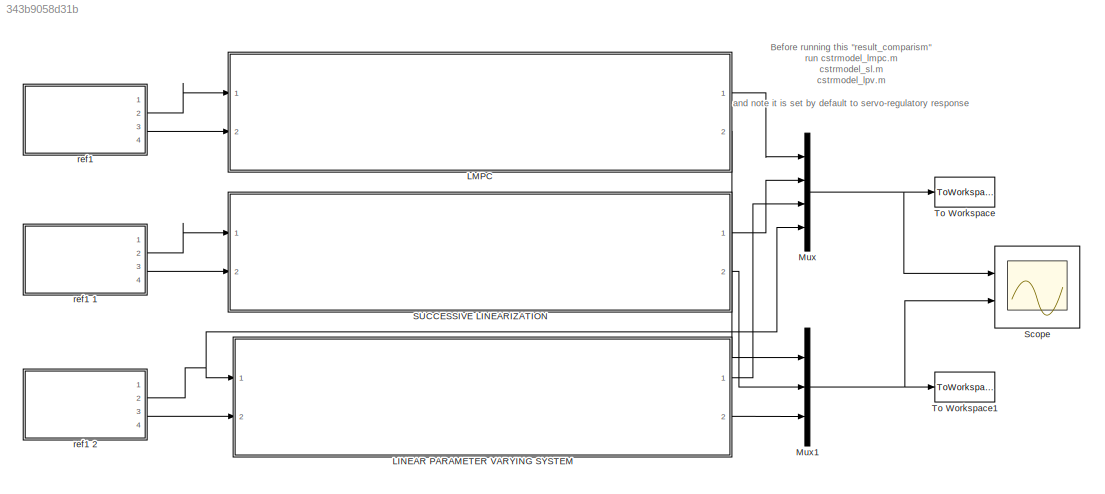
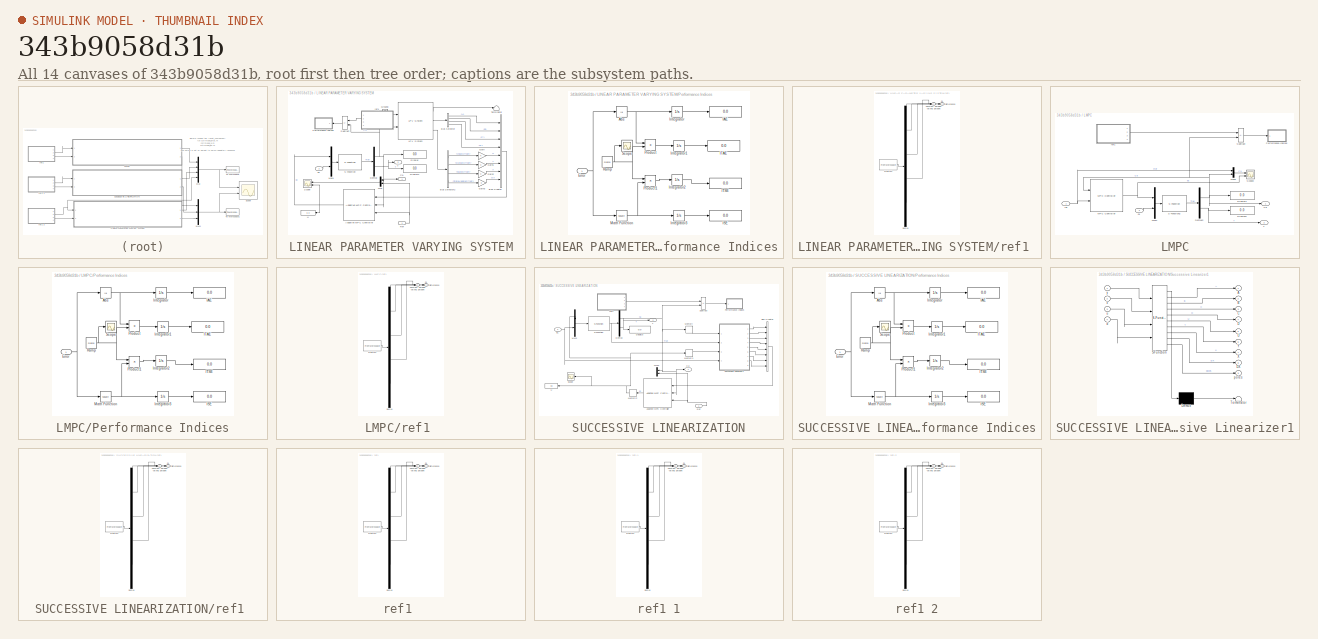
[diagram: thumbnail index - all 14 canvases of the model, root first then tree order]
MODEL slx_343b9058d31b
KIND model
CONFIG AbsTol = auto
CONFIG EnableMultiTasking = off
CONFIG FixedStep = auto
CONFIG MaxStep = auto
CONFIG MinStep = auto
CONFIG RelTol = 1e-3
CONFIG SampleTimeConstraint = Unconstrained
CONFIG SolverName = VariableStepAuto
CONFIG StartTime = 0.0
CONFIG StopTime = 400
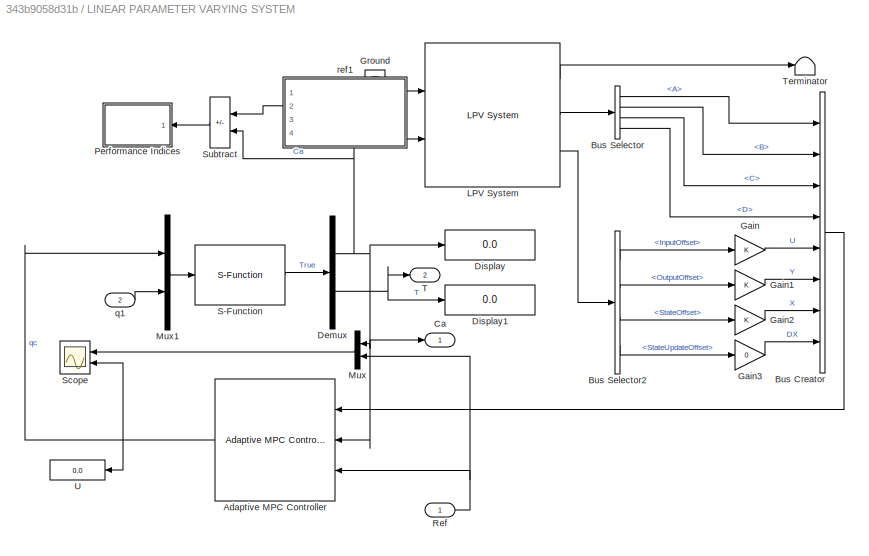
BLOCK [SubSystem] LINEAR PARAMETER VARYING SYSTEM
  Ports = [2, 2]
  RequestExecContextInheritance = off
BLOCK [Reference] LINEAR PARAMETER VARYING SYSTEM/Adaptive MPC Controller  REF=mpclib/Adaptive MPC Controller  (lib defined in mdl_ae329e0e0455)
  Ports = [3, 1]
  SCDEnableBlockLinearizationSpecification = on
  SourceBlock = mpclib/Adaptive MPC Controller
  SourceProductBaseCode = MP
  SourceType = Adaptive MPC
BLOCK [BusCreator] LINEAR PARAMETER VARYING SYSTEM/Bus Creator
  DisplayOption = bar
  InheritFromInputs = on
  Inputs = 8
  Ports = [8, 1]
BLOCK [BusSelector] LINEAR PARAMETER VARYING SYSTEM/Bus Selector
  OutputSignals = A,B,C,D
  Ports = [1, 4]
BLOCK [BusSelector] LINEAR PARAMETER VARYING SYSTEM/Bus Selector2
  OutputSignals = InputOffset,OutputOffset,StateOffset,StateUpdateOffset
  Ports = [1, 4]
BLOCK [Outport] LINEAR PARAMETER VARYING SYSTEM/Ca
  VectorParamsAs1DForOutWhenUnconnected = off
BLOCK [Demux] LINEAR PARAMETER VARYING SYSTEM/Demux
  Outputs = 2
  Ports = [1, 2]
BLOCK [Display] LINEAR PARAMETER VARYING SYSTEM/Display
  Decimation = 1
  Ports = [1]
BLOCK [Display] LINEAR PARAMETER VARYING SYSTEM/Display1
  Decimation = 1
  Ports = [1]
BLOCK [Gain] LINEAR PARAMETER VARYING SYSTEM/Gain
BLOCK [Gain] LINEAR PARAMETER VARYING SYSTEM/Gain1
BLOCK [Gain] LINEAR PARAMETER VARYING SYSTEM/Gain2
BLOCK [Gain] LINEAR PARAMETER VARYING SYSTEM/Gain3
  Gain = 0
BLOCK [Ground] LINEAR PARAMETER VARYING SYSTEM/Ground
BLOCK [Reference] LINEAR PARAMETER VARYING SYSTEM/LPV System  REF=cstblocks/Linear Parameter Varying/LPV System
  Ports = [2, 3]
  SourceBlock = cstblocks/Linear Parameter Varying/LPV System
  SourceProductBaseCode = CT
  SourceType = LPV Block
BLOCK [Mux] LINEAR PARAMETER VARYING SYSTEM/Mux
  DisplayOption = bar
  Inputs = 2
  NameLocation = top
  Ports = [2, 1]
BLOCK [Mux] LINEAR PARAMETER VARYING SYSTEM/Mux1
  DisplayOption = bar
  Inputs = 2
  Ports = [2, 1]
BLOCK [SubSystem] LINEAR PARAMETER VARYING SYSTEM/Performance Indices
  Ports = [1]
  RequestExecContextInheritance = off
BLOCK [Abs] LINEAR PARAMETER VARYING SYSTEM/Performance Indices/Abs
  SaturateOnIntegerOverflow = off
BLOCK [Inport] LINEAR PARAMETER VARYING SYSTEM/Performance Indices/Error
BLOCK [Display] LINEAR PARAMETER VARYING SYSTEM/Performance Indices/IAE
  Decimation = 1
  Ports = [1]
BLOCK [Display] LINEAR PARAMETER VARYING SYSTEM/Performance Indices/ISE
  Decimation = 1
  Ports = [1]
BLOCK [Display] LINEAR PARAMETER VARYING SYSTEM/Performance Indices/ITAE
  Decimation = 1
  Ports = [1]
BLOCK [Display] LINEAR PARAMETER VARYING SYSTEM/Performance Indices/ITSE
  Decimation = 1
  Ports = [1]
BLOCK [Integrator] LINEAR PARAMETER VARYING SYSTEM/Performance Indices/Integrator
  Ports = [1, 1]
BLOCK [Integrator] LINEAR PARAMETER VARYING SYSTEM/Performance Indices/Integrator1
  Ports = [1, 1]
BLOCK [Integrator] LINEAR PARAMETER VARYING SYSTEM/Performance Indices/Integrator2
  Ports = [1, 1]
BLOCK [Integrator] LINEAR PARAMETER VARYING SYSTEM/Performance Indices/Integrator3
  Ports = [1, 1]
BLOCK [Math] LINEAR PARAMETER VARYING SYSTEM/Performance Indices/Math Function
  Operator = square
  Ports = [1, 1]
  SignedPower = on
BLOCK [Product] LINEAR PARAMETER VARYING SYSTEM/Performance Indices/Product
  Ports = [2, 1]
  RndMeth = Zero
BLOCK [Product] LINEAR PARAMETER VARYING SYSTEM/Performance Indices/Product1
  Ports = [2, 1]
  RndMeth = Zero
BLOCK [Reference] LINEAR PARAMETER VARYING SYSTEM/Performance Indices/Ramp  REF=simulink/Sources/Ramp
  Ports = [0, 1]
  SourceBlock = simulink/Sources/Ramp
  SourceProductBaseCode = SL
  SourceType = Ramp
BLOCK [Scope] LINEAR PARAMETER VARYING SYSTEM/Performance Indices/Scope
  Floating = off
  NumInputPorts = 1
  Ports = [1]
  ScopeSpecificationString = Simulink.scopes.TimeScopeBlockCfg('CurrentConfiguration', extmgr.ConfigurationSet(extmgr.Configuration('Core','General UI',true),extmgr.Configuration('Core','Source UI',true),extmgr.Configuration('Sources','WiredSimulink',true,'DataLoggingLimitDataPoints',true,'DataLoggingSaveFormat','Array','DataLoggingDecimation','1','DataLoggingDecimateData',true),extmgr.Configuration('Visuals','Time Domain',tr...<+878ch>  <repeated x3 — deduplicated; at blocks: Scope>
BLOCK [Inport] LINEAR PARAMETER VARYING SYSTEM/Ref
BLOCK [S-Function] LINEAR PARAMETER VARYING SYSTEM/S-Function
  EnableBusSupport = off
  FunctionName = pr_sfun
  Ports = [1, 1]
  SFcnIsStateOwnerBlock = off
  SFunctionDeploymentMode = off
BLOCK [Scope] LINEAR PARAMETER VARYING SYSTEM/Scope
  Floating = off
  NumInputPorts = 2
  Ports = [2]
  ScopeSpecificationString = Simulink.scopes.TimeScopeBlockCfg('CurrentConfiguration', extmgr.ConfigurationSet(extmgr.Configuration('Core','General UI',true),extmgr.Configuration('Core','Source UI',true),extmgr.Configuration('Sources','WiredSimulink',true,'DataLogging',true,'DataLoggingVariableName','ScopeData1'),extmgr.Configuration('Visuals','Time Domain',true,'SerializedDisplays',{struct('MinYLimReal','0.02795','MaxYLimRea...<+2061ch>
BLOCK [Sum] LINEAR PARAMETER VARYING SYSTEM/Subtract
  IconShape = rectangular
  Inputs = +-
  Ports = [2, 1]
BLOCK [Outport] LINEAR PARAMETER VARYING SYSTEM/T
  Port = 2
BLOCK [Terminator] LINEAR PARAMETER VARYING SYSTEM/Terminator
BLOCK [Display] LINEAR PARAMETER VARYING SYSTEM/U
  Decimation = 1
  Ports = [1]
BLOCK [Inport] LINEAR PARAMETER VARYING SYSTEM/q1
  Port = 2
BLOCK [SubSystem] LINEAR PARAMETER VARYING SYSTEM/ref1 
  ClipboardFcn = sigbuilder_block('clipboard');
  CloseFcn = sigbuilder_block('close');
  ContinueFcn = sigbuilder_block('continue');
  CopyFcn = sigbuilder_block('copy');
  DeleteFcn = sigbuilder_block('delete');
  LoadFcn = sigbuilder_block('load');
  MaskHideContents = on
  ModelCloseFcn = sigbuilder_block('modelClose');
  NameChangeFcn = sigbuilder_block('namechange');
  OpenFcn = sigbuilder_block('open',[5.5 0 949 448 ]);
  PauseFcn = sigbuilder_block('pause');
  Ports = [0, 4]
  PreSaveFcn = sigbuilder_block('preSave');
  RequestExecContextInheritance = off
  StartFcn = sigbuilder_block('start');
  StopFcn = sigbuilder_block('stop');
  Tag = STV Subsys
BLOCK [Outport] LINEAR PARAMETER VARYING SYSTEM/ref1 /Constant Setpoint
  Tag = STV Outport
BLOCK [Demux] LINEAR PARAMETER VARYING SYSTEM/ref1 /Demux
  DisplayOption = none
  Ports = [1, 4]
  Tag = STV Demux
BLOCK [Outport] LINEAR PARAMETER VARYING SYSTEM/ref1 /Disturbance
  Port = 4
  Tag = STV Outport
BLOCK [FromWorkspace] LINEAR PARAMETER VARYING SYSTEM/ref1 /FromWs
  Tag = STV FromWs
  VariableName = tuvar
BLOCK [Outport] LINEAR PARAMETER VARYING SYSTEM/ref1 /Varying Setpoint
  Port = 2
  Tag = STV Outport
  VectorParamsAs1DForOutWhenUnconnected = off
BLOCK [Outport] LINEAR PARAMETER VARYING SYSTEM/ref1 /q1
  Port = 3
  Tag = STV Outport
BLOCK [SubSystem] LMPC
  Ports = [2, 2]
  RequestExecContextInheritance = off
BLOCK [Outport] LMPC/Ca
  VectorParamsAs1DForOutWhenUnconnected = off
BLOCK [Demux] LMPC/Demux2
  Outputs = 2
  Ports = [1, 2]
BLOCK [Display] LMPC/Display4
  Decimation = 1
  Ports = [1]
BLOCK [Display] LMPC/Display5
  Decimation = 1
  Ports = [1]
BLOCK [Reference] LMPC/MPC Controller  REF=mpclib/MPC Controller  (lib defined in mdl_ae329e0e0455)
  Ports = [2, 1]
  SCDEnableBlockLinearizationSpecification = on
  SourceBlock = mpclib/MPC Controller
  SourceProductBaseCode = MP
  SourceType = MPC
BLOCK [Mux] LMPC/Mux4
  DisplayOption = bar
  Inputs = 2
  Ports = [2, 1]
BLOCK [Mux] LMPC/Mux5
  DisplayOption = bar
  Inputs = 2
  Ports = [2, 1]
BLOCK [SubSystem] LMPC/Performance Indices
  Ports = [1]
  RequestExecContextInheritance = off
BLOCK [Abs] LMPC/Performance Indices/Abs
  SaturateOnIntegerOverflow = off
BLOCK [Inport] LMPC/Performance Indices/Error
BLOCK [Display] LMPC/Performance Indices/IAE
  Decimation = 1
  Ports = [1]
BLOCK [Display] LMPC/Performance Indices/ISE
  Decimation = 1
  Ports = [1]
BLOCK [Display] LMPC/Performance Indices/ITAE
  Decimation = 1
  Ports = [1]
BLOCK [Display] LMPC/Performance Indices/ITSE
  Decimation = 1
  Ports = [1]
BLOCK [Integrator] LMPC/Performance Indices/Integrator
  Ports = [1, 1]
BLOCK [Integrator] LMPC/Performance Indices/Integrator1
  Ports = [1, 1]
BLOCK [Integrator] LMPC/Performance Indices/Integrator2
  Ports = [1, 1]
BLOCK [Integrator] LMPC/Performance Indices/Integrator3
  Ports = [1, 1]
BLOCK [Math] LMPC/Performance Indices/Math Function
  Operator = square
  Ports = [1, 1]
  SignedPower = on
BLOCK [Product] LMPC/Performance Indices/Product
  Ports = [2, 1]
  RndMeth = Zero
BLOCK [Product] LMPC/Performance Indices/Product1
  Ports = [2, 1]
  RndMeth = Zero
BLOCK [Reference] LMPC/Performance Indices/Ramp  REF=simulink/Sources/Ramp
  Ports = [0, 1]
  SourceBlock = simulink/Sources/Ramp
  SourceProductBaseCode = SL
  SourceType = Ramp
BLOCK [Scope] LMPC/Performance Indices/Scope
  Floating = off
  NumInputPorts = 1
  Ports = [1]
BLOCK [S-Function] LMPC/S-Function2
  EnableBusSupport = off
  FunctionName = pr_sfun
  Ports = [1, 1]
  SFcnIsStateOwnerBlock = off
  SFunctionDeploymentMode = off
BLOCK [Scope] LMPC/Scope2
  Floating = off
  NumInputPorts = 2
  Ports = [2]
  ScopeSpecificationString = Simulink.scopes.TimeScopeBlockCfg('CurrentConfiguration', extmgr.ConfigurationSet(extmgr.Configuration('Core','General UI',true),extmgr.Configuration('Core','Source UI',true),extmgr.Configuration('Sources','WiredSimulink',true,'DataLoggingVariableName','ScopeData3'),extmgr.Configuration('Visuals','Time Domain',true,'SerializedDisplays',{struct('MinYLimReal','0.02812','MaxYLimReal','0.14688','YLabe...<+1966ch>
BLOCK [Sum] LMPC/Subtract
  IconShape = rectangular
  Inputs = +-
  Ports = [2, 1]
BLOCK [Outport] LMPC/T
  Port = 2
BLOCK [Inport] LMPC/q1
  Port = 2
BLOCK [Inport] LMPC/ref
BLOCK [SubSystem] LMPC/ref1 
  ClipboardFcn = sigbuilder_block('clipboard');
  CloseFcn = sigbuilder_block('close');
  ContinueFcn = sigbuilder_block('continue');
  CopyFcn = sigbuilder_block('copy');
  DeleteFcn = sigbuilder_block('delete');
  LoadFcn = sigbuilder_block('load');
  MaskHideContents = on
  ModelCloseFcn = sigbuilder_block('modelClose');
  NameChangeFcn = sigbuilder_block('namechange');
  OpenFcn = sigbuilder_block('open',[5.5 0 949 448 ]);
  PauseFcn = sigbuilder_block('pause');
  Ports = [0, 4]
  PreSaveFcn = sigbuilder_block('preSave');
  RequestExecContextInheritance = off
  StartFcn = sigbuilder_block('start');
  StopFcn = sigbuilder_block('stop');
  Tag = STV Subsys
BLOCK [Outport] LMPC/ref1 /Constant Setpoint
  Tag = STV Outport
BLOCK [Demux] LMPC/ref1 /Demux
  DisplayOption = none
  Ports = [1, 4]
  Tag = STV Demux
BLOCK [Outport] LMPC/ref1 /Disturbance
  Port = 4
  Tag = STV Outport
BLOCK [FromWorkspace] LMPC/ref1 /FromWs
  Tag = STV FromWs
  VariableName = tuvar
BLOCK [Outport] LMPC/ref1 /Varying Setpoint
  Port = 2
  Tag = STV Outport
  VectorParamsAs1DForOutWhenUnconnected = off
BLOCK [Outport] LMPC/ref1 /q1
  Port = 3
  Tag = STV Outport
BLOCK [Mux] Mux
  DisplayOption = bar
  Ports = [4, 1]
BLOCK [Mux] Mux1
  DisplayOption = bar
  Inputs = 3
  Ports = [3, 1]
BLOCK [SubSystem] SUCCESSIVE LINEARIZATION
  Ports = [2, 2]
  RequestExecContextInheritance = off
BLOCK [Reference] SUCCESSIVE LINEARIZATION/Adaptive MPC Controller  REF=mpclib/Adaptive MPC Controller  (lib defined in mdl_ae329e0e0455)
  Ports = [3, 1]
  SCDEnableBlockLinearizationSpecification = on
  SourceBlock = mpclib/Adaptive MPC Controller
  SourceProductBaseCode = MP
  SourceType = Adaptive MPC
BLOCK [BusCreator] SUCCESSIVE LINEARIZATION/Bus Creator
  DisplayOption = bar
  InheritFromInputs = on
  Inputs = 8
  Ports = [8, 1]
BLOCK [Outport] SUCCESSIVE LINEARIZATION/Ca
  VectorParamsAs1DForOutWhenUnconnected = off
BLOCK [Demux] SUCCESSIVE LINEARIZATION/Demux
  Outputs = 2
  Ports = [1, 2]
BLOCK [Display] SUCCESSIVE LINEARIZATION/Display3
  Decimation = 1
  Ports = [1]
BLOCK [Memory] SUCCESSIVE LINEARIZATION/Memory
  InitialCondition = 0.1
BLOCK [Memory] SUCCESSIVE LINEARIZATION/Memory1
  InitialCondition = 103.41
BLOCK [Memory] SUCCESSIVE LINEARIZATION/Memory2
  InitialCondition = 103.41
BLOCK [Mux] SUCCESSIVE LINEARIZATION/Mux2
  DisplayOption = bar
  Inputs = 2
  NameLocation = top
  Ports = [2, 1]
BLOCK [Mux] SUCCESSIVE LINEARIZATION/Mux3
  DisplayOption = bar
  Inputs = 2
  Ports = [2, 1]
BLOCK [SubSystem] SUCCESSIVE LINEARIZATION/Performance Indices
  Ports = [1]
  RequestExecContextInheritance = off
BLOCK [Abs] SUCCESSIVE LINEARIZATION/Performance Indices/Abs
  SaturateOnIntegerOverflow = off
BLOCK [Inport] SUCCESSIVE LINEARIZATION/Performance Indices/Error
BLOCK [Display] SUCCESSIVE LINEARIZATION/Performance Indices/IAE
  Decimation = 1
  Ports = [1]
BLOCK [Display] SUCCESSIVE LINEARIZATION/Performance Indices/ISE
  Decimation = 1
  Ports = [1]
BLOCK [Display] SUCCESSIVE LINEARIZATION/Performance Indices/ITAE
  Decimation = 1
  Ports = [1]
BLOCK [Display] SUCCESSIVE LINEARIZATION/Performance Indices/ITSE
  Decimation = 1
  Ports = [1]
BLOCK [Integrator] SUCCESSIVE LINEARIZATION/Performance Indices/Integrator
  Ports = [1, 1]
BLOCK [Integrator] SUCCESSIVE LINEARIZATION/Performance Indices/Integrator1
  Ports = [1, 1]
BLOCK [Integrator] SUCCESSIVE LINEARIZATION/Performance Indices/Integrator2
  Ports = [1, 1]
BLOCK [Integrator] SUCCESSIVE LINEARIZATION/Performance Indices/Integrator3
  Ports = [1, 1]
BLOCK [Math] SUCCESSIVE LINEARIZATION/Performance Indices/Math Function
  Operator = square
  Ports = [1, 1]
  SignedPower = on
BLOCK [Product] SUCCESSIVE LINEARIZATION/Performance Indices/Product
  Ports = [2, 1]
  RndMeth = Zero
BLOCK [Product] SUCCESSIVE LINEARIZATION/Performance Indices/Product1
  Ports = [2, 1]
  RndMeth = Zero
BLOCK [Reference] SUCCESSIVE LINEARIZATION/Performance Indices/Ramp  REF=simulink/Sources/Ramp
  Ports = [0, 1]
  SourceBlock = simulink/Sources/Ramp
  SourceProductBaseCode = SL
  SourceType = Ramp
BLOCK [Scope] SUCCESSIVE LINEARIZATION/Performance Indices/Scope
  Floating = off
  NumInputPorts = 1
  Ports = [1]
BLOCK [Inport] SUCCESSIVE LINEARIZATION/Ref
BLOCK [S-Function] SUCCESSIVE LINEARIZATION/S-Function
  EnableBusSupport = off
  FunctionName = pr_sfun
  Ports = [1, 1]
  SFcnIsStateOwnerBlock = off
  SFunctionDeploymentMode = off
BLOCK [Scope] SUCCESSIVE LINEARIZATION/Scope
  Floating = off
  NumInputPorts = 1
  Ports = [1]
  ScopeSpecificationString = Simulink.scopes.TimeScopeBlockCfg('CurrentConfiguration', extmgr.ConfigurationSet(extmgr.Configuration('Core','General UI',true),extmgr.Configuration('Core','Source UI',true),extmgr.Configuration('Sources','WiredSimulink',true,'DataLoggingVariableName','ScopeData1'),extmgr.Configuration('Visuals','Time Domain',true,'SerializedDisplays',{struct('MinYLimReal','76.49751','MaxYLimReal','106.40028','YL...<+1376ch>
BLOCK [Sum] SUCCESSIVE LINEARIZATION/Subtract
  IconShape = rectangular
  Inputs = +-
  Ports = [2, 1]
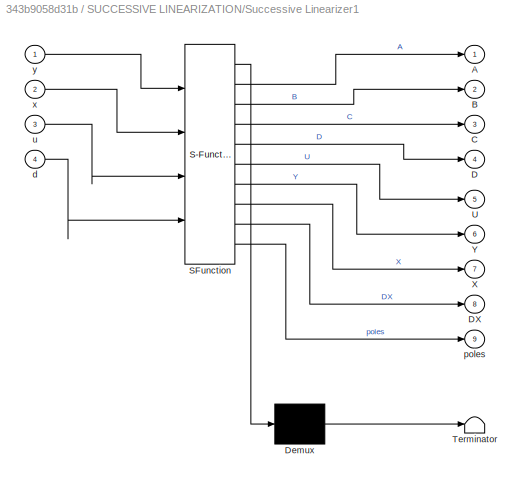
BLOCK [SubSystem] SUCCESSIVE LINEARIZATION/Successive Linearizer1
  ErrorFcn = Stateflow.Translate.translate
  PermitHierarchicalResolution = ExplicitOnly
  Ports = [4, 9]
  RequestExecContextInheritance = off
  SFBlockType = MATLAB Function
  SystemSampleTime = 0.5
  TreatAsAtomicUnit = on
BLOCK [Demux] SUCCESSIVE LINEARIZATION/Successive Linearizer1/ Demux 
  Outputs = 1
  Ports = [1, 1]
BLOCK [S-Function] SUCCESSIVE LINEARIZATION/Successive Linearizer1/ SFunction 
  EnableBusSupport = on
  FunctionName = sf_sfun
  PortCounts = [4 10]
  Ports = [4, 10]
  SFcnIsStateOwnerBlock = off
  SFunctionDeploymentMode = off
  Tag = Stateflow S-Function 1
BLOCK [Terminator] SUCCESSIVE LINEARIZATION/Successive Linearizer1/ Terminator 
BLOCK [Outport] SUCCESSIVE LINEARIZATION/Successive Linearizer1/A
  VectorParamsAs1DForOutWhenUnconnected = off
BLOCK [Outport] SUCCESSIVE LINEARIZATION/Successive Linearizer1/B
  Port = 2
  VectorParamsAs1DForOutWhenUnconnected = off
BLOCK [Outport] SUCCESSIVE LINEARIZATION/Successive Linearizer1/C
  Port = 3
  VectorParamsAs1DForOutWhenUnconnected = off
BLOCK [Outport] SUCCESSIVE LINEARIZATION/Successive Linearizer1/D
  Port = 4
  VectorParamsAs1DForOutWhenUnconnected = off
BLOCK [Outport] SUCCESSIVE LINEARIZATION/Successive Linearizer1/DX
  Port = 8
  VectorParamsAs1DForOutWhenUnconnected = off
BLOCK [Outport] SUCCESSIVE LINEARIZATION/Successive Linearizer1/U
  Port = 5
  VectorParamsAs1DForOutWhenUnconnected = off
BLOCK [Outport] SUCCESSIVE LINEARIZATION/Successive Linearizer1/X
  Port = 7
  VectorParamsAs1DForOutWhenUnconnected = off
BLOCK [Outport] SUCCESSIVE LINEARIZATION/Successive Linearizer1/Y
  Port = 6
  VectorParamsAs1DForOutWhenUnconnected = off
BLOCK [Inport] SUCCESSIVE LINEARIZATION/Successive Linearizer1/d
  Port = 4
BLOCK [Outport] SUCCESSIVE LINEARIZATION/Successive Linearizer1/poles
  Port = 9
BLOCK [Inport] SUCCESSIVE LINEARIZATION/Successive Linearizer1/u
  Port = 3
BLOCK [Inport] SUCCESSIVE LINEARIZATION/Successive Linearizer1/x
  Port = 2
BLOCK [Inport] SUCCESSIVE LINEARIZATION/Successive Linearizer1/y
BLOCK [Outport] SUCCESSIVE LINEARIZATION/T
  Port = 2
BLOCK [Display] SUCCESSIVE LINEARIZATION/U
  Decimation = 1
  Ports = [1]
BLOCK [Inport] SUCCESSIVE LINEARIZATION/q1
  Port = 2
BLOCK [SubSystem] SUCCESSIVE LINEARIZATION/ref1 
  ClipboardFcn = sigbuilder_block('clipboard');
  CloseFcn = sigbuilder_block('close');
  ContinueFcn = sigbuilder_block('continue');
  CopyFcn = sigbuilder_block('copy');
  DeleteFcn = sigbuilder_block('delete');
  LoadFcn = sigbuilder_block('load');
  MaskHideContents = on
  ModelCloseFcn = sigbuilder_block('modelClose');
  NameChangeFcn = sigbuilder_block('namechange');
  OpenFcn = sigbuilder_block('open',[5.5 0 949 448 ]);
  PauseFcn = sigbuilder_block('pause');
  Ports = [0, 4]
  PreSaveFcn = sigbuilder_block('preSave');
  RequestExecContextInheritance = off
  StartFcn = sigbuilder_block('start');
  StopFcn = sigbuilder_block('stop');
  Tag = STV Subsys
BLOCK [Outport] SUCCESSIVE LINEARIZATION/ref1 /Constant Setpoint
  Tag = STV Outport
BLOCK [Demux] SUCCESSIVE LINEARIZATION/ref1 /Demux
  DisplayOption = none
  Ports = [1, 4]
  Tag = STV Demux
BLOCK [Outport] SUCCESSIVE LINEARIZATION/ref1 /Disturbance
  Port = 4
  Tag = STV Outport
BLOCK [FromWorkspace] SUCCESSIVE LINEARIZATION/ref1 /FromWs
  Tag = STV FromWs
  VariableName = tuvar
BLOCK [Outport] SUCCESSIVE LINEARIZATION/ref1 /Varying Setpoint
  Port = 2
  Tag = STV Outport
  VectorParamsAs1DForOutWhenUnconnected = off
BLOCK [Outport] SUCCESSIVE LINEARIZATION/ref1 /q1
  Port = 3
  Tag = STV Outport
BLOCK [Scope] Scope
  Floating = off
  NumInputPorts = 2
  Ports = [2]
  ScopeSpecificationString = Simulink.scopes.TimeScopeBlockCfg('CurrentConfiguration', extmgr.ConfigurationSet(extmgr.Configuration('Core','General UI',true),extmgr.Configuration('Core','Source UI',true),extmgr.Configuration('Sources','WiredSimulink',true,'DataLoggingVariableName','ScopeData1'),extmgr.Configuration('Visuals','Time Domain',true,'SerializedDisplays',{struct('MinYLimReal','0.0296','MaxYLimReal','0.11725','YLabel...<+2422ch>
BLOCK [ToWorkspace] To Workspace
  FixptAsFi = on
  MaxDataPoints = inf
  Ports = [1]
  SampleTime = -1
  SaveFormat = Structure With Time
  VariableName = asave
BLOCK [ToWorkspace] To Workspace1
  FixptAsFi = on
  MaxDataPoints = inf
  Ports = [1]
  SampleTime = -1
  SaveFormat = Structure With Time
  VariableName = bsave
BLOCK [SubSystem] ref1 
  ClipboardFcn = sigbuilder_block('clipboard');
  CloseFcn = sigbuilder_block('close');
  ContinueFcn = sigbuilder_block('continue');
  CopyFcn = sigbuilder_block('copy');
  DeleteFcn = sigbuilder_block('delete');
  LoadFcn = sigbuilder_block('load');
  MaskHideContents = on
  ModelCloseFcn = sigbuilder_block('modelClose');
  NameChangeFcn = sigbuilder_block('namechange');
  OpenFcn = sigbuilder_block('open',[5.5 0 949 448 ]);
  PauseFcn = sigbuilder_block('pause');
  Ports = [0, 4]
  PreSaveFcn = sigbuilder_block('preSave');
  RequestExecContextInheritance = off
  StartFcn = sigbuilder_block('start');
  StopFcn = sigbuilder_block('stop');
  Tag = STV Subsys
BLOCK [Outport] ref1 /Constant Setpoint
  Tag = STV Outport
BLOCK [Demux] ref1 /Demux
  DisplayOption = none
  Ports = [1, 4]
  Tag = STV Demux
BLOCK [Outport] ref1 /Disturbance
  Port = 4
  Tag = STV Outport
BLOCK [FromWorkspace] ref1 /FromWs
  Tag = STV FromWs
  VariableName = tuvar
BLOCK [Outport] ref1 /Varying Setpoint
  Port = 2
  Tag = STV Outport
  VectorParamsAs1DForOutWhenUnconnected = off
BLOCK [Outport] ref1 /q1
  Port = 3
  Tag = STV Outport
BLOCK [SubSystem] ref1 1
  ClipboardFcn = sigbuilder_block('clipboard');
  CloseFcn = sigbuilder_block('close');
  ContinueFcn = sigbuilder_block('continue');
  CopyFcn = sigbuilder_block('copy');
  DeleteFcn = sigbuilder_block('delete');
  LoadFcn = sigbuilder_block('load');
  MaskHideContents = on
  ModelCloseFcn = sigbuilder_block('modelClose');
  NameChangeFcn = sigbuilder_block('namechange');
  OpenFcn = sigbuilder_block('open',[5.5 0 949 448 ]);
  PauseFcn = sigbuilder_block('pause');
  Ports = [0, 4]
  PreSaveFcn = sigbuilder_block('preSave');
  RequestExecContextInheritance = off
  StartFcn = sigbuilder_block('start');
  StopFcn = sigbuilder_block('stop');
  Tag = STV Subsys
BLOCK [Outport] ref1 1/Constant Setpoint
  Tag = STV Outport
BLOCK [Demux] ref1 1/Demux
  DisplayOption = none
  Ports = [1, 4]
  Tag = STV Demux
BLOCK [Outport] ref1 1/Disturbance
  Port = 4
  Tag = STV Outport
BLOCK [FromWorkspace] ref1 1/FromWs
  Tag = STV FromWs
  VariableName = tuvar
BLOCK [Outport] ref1 1/Varying Setpoint
  Port = 2
  Tag = STV Outport
  VectorParamsAs1DForOutWhenUnconnected = off
BLOCK [Outport] ref1 1/q1
  Port = 3
  Tag = STV Outport
BLOCK [SubSystem] ref1 2
  ClipboardFcn = sigbuilder_block('clipboard');
  CloseFcn = sigbuilder_block('close');
  ContinueFcn = sigbuilder_block('continue');
  CopyFcn = sigbuilder_block('copy');
  DeleteFcn = sigbuilder_block('delete');
  LoadFcn = sigbuilder_block('load');
  MaskHideContents = on
  ModelCloseFcn = sigbuilder_block('modelClose');
  NameChangeFcn = sigbuilder_block('namechange');
  OpenFcn = sigbuilder_block('open',[5.5 0 949 448 ]);
  PauseFcn = sigbuilder_block('pause');
  Ports = [0, 4]
  PreSaveFcn = sigbuilder_block('preSave');
  RequestExecContextInheritance = off
  StartFcn = sigbuilder_block('start');
  StopFcn = sigbuilder_block('stop');
  Tag = STV Subsys
BLOCK [Outport] ref1 2/Constant Setpoint
  Tag = STV Outport
BLOCK [Demux] ref1 2/Demux
  DisplayOption = none
  Ports = [1, 4]
  Tag = STV Demux
BLOCK [Outport] ref1 2/Disturbance
  Port = 4
  Tag = STV Outport
BLOCK [FromWorkspace] ref1 2/FromWs
  Tag = STV FromWs
  VariableName = tuvar
BLOCK [Outport] ref1 2/Varying Setpoint
  Port = 2
  Tag = STV Outport
  VectorParamsAs1DForOutWhenUnconnected = off
BLOCK [Outport] ref1 2/q1
  Port = 3
  Tag = STV Outport
ANNOTATION (root): Before running this "result_comparism" run cstrmodel_lmpc.m cstrmodel_sl.m cstrmodel_lpv.m and note it is set by default to servo-regulatory response
NET LINEAR PARAMETER VARYING SYSTEM/Adaptive MPC Controller:1 -> LINEAR PARAMETER VARYING SYSTEM/Mux1:1, LINEAR PARAMETER VARYING SYSTEM/Scope:2, LINEAR PARAMETER VARYING SYSTEM/U:1
LINE LINEAR PARAMETER VARYING SYSTEM/Bus Creator:1 -> LINEAR PARAMETER VARYING SYSTEM/Adaptive MPC Controller:1
LINE LINEAR PARAMETER VARYING SYSTEM/Bus Selector2:1 -> LINEAR PARAMETER VARYING SYSTEM/Gain:1
LINE LINEAR PARAMETER VARYING SYSTEM/Bus Selector2:2 -> LINEAR PARAMETER VARYING SYSTEM/Gain1:1
LINE LINEAR PARAMETER VARYING SYSTEM/Bus Selector2:3 -> LINEAR PARAMETER VARYING SYSTEM/Gain2:1
LINE LINEAR PARAMETER VARYING SYSTEM/Bus Selector2:4 -> LINEAR PARAMETER VARYING SYSTEM/Gain3:1
LINE LINEAR PARAMETER VARYING SYSTEM/Bus Selector:1 -> LINEAR PARAMETER VARYING SYSTEM/Bus Creator:1
LINE LINEAR PARAMETER VARYING SYSTEM/Bus Selector:2 -> LINEAR PARAMETER VARYING SYSTEM/Bus Creator:2
LINE LINEAR PARAMETER VARYING SYSTEM/Bus Selector:3 -> LINEAR PARAMETER VARYING SYSTEM/Bus Creator:3
LINE LINEAR PARAMETER VARYING SYSTEM/Bus Selector:4 -> LINEAR PARAMETER VARYING SYSTEM/Bus Creator:4
NET LINEAR PARAMETER VARYING SYSTEM/Demux:1 -> LINEAR PARAMETER VARYING SYSTEM/Adaptive MPC Controller:2, LINEAR PARAMETER VARYING SYSTEM/Ca:1, LINEAR PARAMETER VARYING SYSTEM/Display:1, LINEAR PARAMETER VARYING SYSTEM/LPV System:2, LINEAR PARAMETER VARYING SYSTEM/Mux:1, LINEAR PARAMETER VARYING SYSTEM/Subtract:2
NET LINEAR PARAMETER VARYING SYSTEM/Demux:2 -> LINEAR PARAMETER VARYING SYSTEM/Display1:1, LINEAR PARAMETER VARYING SYSTEM/T:1
LINE LINEAR PARAMETER VARYING SYSTEM/Gain1:1 -> LINEAR PARAMETER VARYING SYSTEM/Bus Creator:6
LINE LINEAR PARAMETER VARYING SYSTEM/Gain2:1 -> LINEAR PARAMETER VARYING SYSTEM/Bus Creator:7
LINE LINEAR PARAMETER VARYING SYSTEM/Gain3:1 -> LINEAR PARAMETER VARYING SYSTEM/Bus Creator:8
LINE LINEAR PARAMETER VARYING SYSTEM/Gain:1 -> LINEAR PARAMETER VARYING SYSTEM/Bus Creator:5
LINE LINEAR PARAMETER VARYING SYSTEM/Ground:1 -> LINEAR PARAMETER VARYING SYSTEM/LPV System:1
LINE LINEAR PARAMETER VARYING SYSTEM/LPV System:1 -> LINEAR PARAMETER VARYING SYSTEM/Terminator:1
LINE LINEAR PARAMETER VARYING SYSTEM/LPV System:2 -> LINEAR PARAMETER VARYING SYSTEM/Bus Selector:1
LINE LINEAR PARAMETER VARYING SYSTEM/LPV System:3 -> LINEAR PARAMETER VARYING SYSTEM/Bus Selector2:1
LINE LINEAR PARAMETER VARYING SYSTEM/Mux1:1 -> LINEAR PARAMETER VARYING SYSTEM/S-Function:1
LINE LINEAR PARAMETER VARYING SYSTEM/Mux:1 -> LINEAR PARAMETER VARYING SYSTEM/Scope:1
NET LINEAR PARAMETER VARYING SYSTEM/Performance Indices/Abs:1 -> LINEAR PARAMETER VARYING SYSTEM/Performance Indices/Integrator:1, LINEAR PARAMETER VARYING SYSTEM/Performance Indices/Product:1
NET LINEAR PARAMETER VARYING SYSTEM/Performance Indices/Error:1 -> LINEAR PARAMETER VARYING SYSTEM/Performance Indices/Abs:1, LINEAR PARAMETER VARYING SYSTEM/Performance Indices/Math Function:1
LINE LINEAR PARAMETER VARYING SYSTEM/Performance Indices/Integrator1:1 -> LINEAR PARAMETER VARYING SYSTEM/Performance Indices/ITAE:1
LINE LINEAR PARAMETER VARYING SYSTEM/Performance Indices/Integrator2:1 -> LINEAR PARAMETER VARYING SYSTEM/Performance Indices/ITSE:1
LINE LINEAR PARAMETER VARYING SYSTEM/Performance Indices/Integrator3:1 -> LINEAR PARAMETER VARYING SYSTEM/Performance Indices/ISE:1
LINE LINEAR PARAMETER VARYING SYSTEM/Performance Indices/Integrator:1 -> LINEAR PARAMETER VARYING SYSTEM/Performance Indices/IAE:1
NET LINEAR PARAMETER VARYING SYSTEM/Performance Indices/Math Function:1 -> LINEAR PARAMETER VARYING SYSTEM/Performance Indices/Integrator3:1, LINEAR PARAMETER VARYING SYSTEM/Performance Indices/Product1:2
LINE LINEAR PARAMETER VARYING SYSTEM/Performance Indices/Product1:1 -> LINEAR PARAMETER VARYING SYSTEM/Performance Indices/Integrator2:1
LINE LINEAR PARAMETER VARYING SYSTEM/Performance Indices/Product:1 -> LINEAR PARAMETER VARYING SYSTEM/Performance Indices/Integrator1:1
NET LINEAR PARAMETER VARYING SYSTEM/Performance Indices/Ramp:1 -> LINEAR PARAMETER VARYING SYSTEM/Performance Indices/Product1:1, LINEAR PARAMETER VARYING SYSTEM/Performance Indices/Product:2, LINEAR PARAMETER VARYING SYSTEM/Performance Indices/Scope:1
NET LINEAR PARAMETER VARYING SYSTEM/Ref:1 -> LINEAR PARAMETER VARYING SYSTEM/Adaptive MPC Controller:3, LINEAR PARAMETER VARYING SYSTEM/Mux:2
LINE LINEAR PARAMETER VARYING SYSTEM/S-Function:1 -> LINEAR PARAMETER VARYING SYSTEM/Demux:1
LINE LINEAR PARAMETER VARYING SYSTEM/Subtract:1 -> LINEAR PARAMETER VARYING SYSTEM/Performance Indices:1
LINE LINEAR PARAMETER VARYING SYSTEM/q1:1 -> LINEAR PARAMETER VARYING SYSTEM/Mux1:2
LINE LINEAR PARAMETER VARYING SYSTEM/ref1 :2 -> LINEAR PARAMETER VARYING SYSTEM/Subtract:1
LINE LINEAR PARAMETER VARYING SYSTEM:1 -> Mux:3
LINE LINEAR PARAMETER VARYING SYSTEM:2 -> Mux1:3
NET LMPC/Demux2:1 -> LMPC/Ca:1, LMPC/Display4:1, LMPC/MPC Controller:1, LMPC/Mux5:2, LMPC/Subtract:2
NET LMPC/Demux2:2 -> LMPC/Display5:1, LMPC/T:1
NET LMPC/MPC Controller:1 -> LMPC/Mux4:1, LMPC/Scope2:2
LINE LMPC/Mux4:1 -> LMPC/S-Function2:1
LINE LMPC/Mux5:1 -> LMPC/Scope2:1
NET LMPC/Performance Indices/Abs:1 -> LMPC/Performance Indices/Integrator:1, LMPC/Performance Indices/Product:1
NET LMPC/Performance Indices/Error:1 -> LMPC/Performance Indices/Abs:1, LMPC/Performance Indices/Math Function:1
LINE LMPC/Performance Indices/Integrator1:1 -> LMPC/Performance Indices/ITAE:1
LINE LMPC/Performance Indices/Integrator2:1 -> LMPC/Performance Indices/ITSE:1
LINE LMPC/Performance Indices/Integrator3:1 -> LMPC/Performance Indices/ISE:1
LINE LMPC/Performance Indices/Integrator:1 -> LMPC/Performance Indices/IAE:1
NET LMPC/Performance Indices/Math Function:1 -> LMPC/Performance Indices/Integrator3:1, LMPC/Performance Indices/Product1:2
LINE LMPC/Performance Indices/Product1:1 -> LMPC/Performance Indices/Integrator2:1
LINE LMPC/Performance Indices/Product:1 -> LMPC/Performance Indices/Integrator1:1
NET LMPC/Performance Indices/Ramp:1 -> LMPC/Performance Indices/Product1:1, LMPC/Performance Indices/Product:2, LMPC/Performance Indices/Scope:1
LINE LMPC/S-Function2:1 -> LMPC/Demux2:1
LINE LMPC/Subtract:1 -> LMPC/Performance Indices:1
LINE LMPC/q1:1 -> LMPC/Mux4:2
LINE LMPC/ref1 :2 -> LMPC/Subtract:1
NET LMPC/ref:1 -> LMPC/MPC Controller:2, LMPC/Mux5:1
LINE LMPC:1 -> Mux:1
LINE LMPC:2 -> Mux1:1
NET Mux1:1 -> Scope:2, To Workspace1:1
NET Mux:1 -> Scope:1, To Workspace:1
LINE SUCCESSIVE LINEARIZATION/Adaptive MPC Controller:1 -> SUCCESSIVE LINEARIZATION/Memory2:1
LINE SUCCESSIVE LINEARIZATION/Bus Creator:1 -> SUCCESSIVE LINEARIZATION/Adaptive MPC Controller:1
NET SUCCESSIVE LINEARIZATION/Demux:1 -> SUCCESSIVE LINEARIZATION/Adaptive MPC Controller:2, SUCCESSIVE LINEARIZATION/Ca:1, SUCCESSIVE LINEARIZATION/Memory:1, SUCCESSIVE LINEARIZATION/Mux2:1, SUCCESSIVE LINEARIZATION/Subtract:2
NET SUCCESSIVE LINEARIZATION/Demux:2 -> SUCCESSIVE LINEARIZATION/Display3:1, SUCCESSIVE LINEARIZATION/T:1
LINE SUCCESSIVE LINEARIZATION/Memory1:1 -> SUCCESSIVE LINEARIZATION/Successive Linearizer1:3
NET SUCCESSIVE LINEARIZATION/Memory2:1 -> SUCCESSIVE LINEARIZATION/Memory1:1, SUCCESSIVE LINEARIZATION/Mux3:1, SUCCESSIVE LINEARIZATION/Scope:1, SUCCESSIVE LINEARIZATION/U:1
LINE SUCCESSIVE LINEARIZATION/Memory:1 -> SUCCESSIVE LINEARIZATION/Successive Linearizer1:1
LINE SUCCESSIVE LINEARIZATION/Mux3:1 -> SUCCESSIVE LINEARIZATION/S-Function:1
NET SUCCESSIVE LINEARIZATION/Performance Indices/Abs:1 -> SUCCESSIVE LINEARIZATION/Performance Indices/Integrator:1, SUCCESSIVE LINEARIZATION/Performance Indices/Product:1
NET SUCCESSIVE LINEARIZATION/Performance Indices/Error:1 -> SUCCESSIVE LINEARIZATION/Performance Indices/Abs:1, SUCCESSIVE LINEARIZATION/Performance Indices/Math Function:1
LINE SUCCESSIVE LINEARIZATION/Performance Indices/Integrator1:1 -> SUCCESSIVE LINEARIZATION/Performance Indices/ITAE:1
LINE SUCCESSIVE LINEARIZATION/Performance Indices/Integrator2:1 -> SUCCESSIVE LINEARIZATION/Performance Indices/ITSE:1
LINE SUCCESSIVE LINEARIZATION/Performance Indices/Integrator3:1 -> SUCCESSIVE LINEARIZATION/Performance Indices/ISE:1
LINE SUCCESSIVE LINEARIZATION/Performance Indices/Integrator:1 -> SUCCESSIVE LINEARIZATION/Performance Indices/IAE:1
NET SUCCESSIVE LINEARIZATION/Performance Indices/Math Function:1 -> SUCCESSIVE LINEARIZATION/Performance Indices/Integrator3:1, SUCCESSIVE LINEARIZATION/Performance Indices/Product1:2
LINE SUCCESSIVE LINEARIZATION/Performance Indices/Product1:1 -> SUCCESSIVE LINEARIZATION/Performance Indices/Integrator2:1
LINE SUCCESSIVE LINEARIZATION/Performance Indices/Product:1 -> SUCCESSIVE LINEARIZATION/Performance Indices/Integrator1:1
NET SUCCESSIVE LINEARIZATION/Performance Indices/Ramp:1 -> SUCCESSIVE LINEARIZATION/Performance Indices/Product1:1, SUCCESSIVE LINEARIZATION/Performance Indices/Product:2, SUCCESSIVE LINEARIZATION/Performance Indices/Scope:1
NET SUCCESSIVE LINEARIZATION/Ref:1 -> SUCCESSIVE LINEARIZATION/Adaptive MPC Controller:3, SUCCESSIVE LINEARIZATION/Mux2:2
NET SUCCESSIVE LINEARIZATION/S-Function:1 -> SUCCESSIVE LINEARIZATION/Demux:1, SUCCESSIVE LINEARIZATION/Successive Linearizer1:2
LINE SUCCESSIVE LINEARIZATION/Subtract:1 -> SUCCESSIVE LINEARIZATION/Performance Indices:1
LINE SUCCESSIVE LINEARIZATION/Successive Linearizer1:1 -> SUCCESSIVE LINEARIZATION/Bus Creator:1
LINE SUCCESSIVE LINEARIZATION/Successive Linearizer1:2 -> SUCCESSIVE LINEARIZATION/Bus Creator:2
LINE SUCCESSIVE LINEARIZATION/Successive Linearizer1:3 -> SUCCESSIVE LINEARIZATION/Bus Creator:3
LINE SUCCESSIVE LINEARIZATION/Successive Linearizer1:4 -> SUCCESSIVE LINEARIZATION/Bus Creator:4
LINE SUCCESSIVE LINEARIZATION/Successive Linearizer1:5 -> SUCCESSIVE LINEARIZATION/Bus Creator:5
LINE SUCCESSIVE LINEARIZATION/Successive Linearizer1:6 -> SUCCESSIVE LINEARIZATION/Bus Creator:6
LINE SUCCESSIVE LINEARIZATION/Successive Linearizer1:7 -> SUCCESSIVE LINEARIZATION/Bus Creator:7
LINE SUCCESSIVE LINEARIZATION/Successive Linearizer1:8 -> SUCCESSIVE LINEARIZATION/Bus Creator:8
NET SUCCESSIVE LINEARIZATION/q1:1 -> SUCCESSIVE LINEARIZATION/Mux3:2, SUCCESSIVE LINEARIZATION/Successive Linearizer1:4
LINE SUCCESSIVE LINEARIZATION/ref1 :2 -> SUCCESSIVE LINEARIZATION/Subtract:1
LINE SUCCESSIVE LINEARIZATION:1 -> Mux:2
LINE SUCCESSIVE LINEARIZATION:2 -> Mux1:2
LINE ref1 1:2 -> SUCCESSIVE LINEARIZATION:1
LINE ref1 1:4 -> SUCCESSIVE LINEARIZATION:2
NET ref1 2:2 -> LINEAR PARAMETER VARYING SYSTEM:1, Mux:4
LINE ref1 2:4 -> LINEAR PARAMETER VARYING SYSTEM:2
LINE ref1 :2 -> LMPC:1
LINE ref1 :4 -> LMPC:2
note: NET lines group one-source signal fan-out (src -> all destinations, sorted); 1:1 wires keep LINE
CHART SUCCESSIVE LINEARIZATION/Successive Linearizer1 states=1 transitions=1
  STATE_LABEL 'eML_blk_kernel()'
  STATE_LABEL 'SCRIPT:\nfunction [A, B, C, D, U, Y, X, DX,poles] = fcn(y, x, u, d)\n\n%%%%%%%%%%%%%%%%%%%%%%%%%%%%%%%%%%%%%%%%%%%%%%%%%%%%%%%\n%#codegen\n\n% Define constant outputs\nTs = 0.1;\nU = u(1) ;\nY = y ;\nX = x(1:2) ;\n\n\n\n% Analytical linearization of mechanistic CSTR model (continuous time)\n% [A, Bo] = getContinuous(T, CA, CAi, Ti, Tc);\n[a, b, c, d] = getContinuous(y, x, u, d, Ts)  ;\n\n% Convert continuous to dis...<+2082ch>'
CHART  states=0 transitions=0
